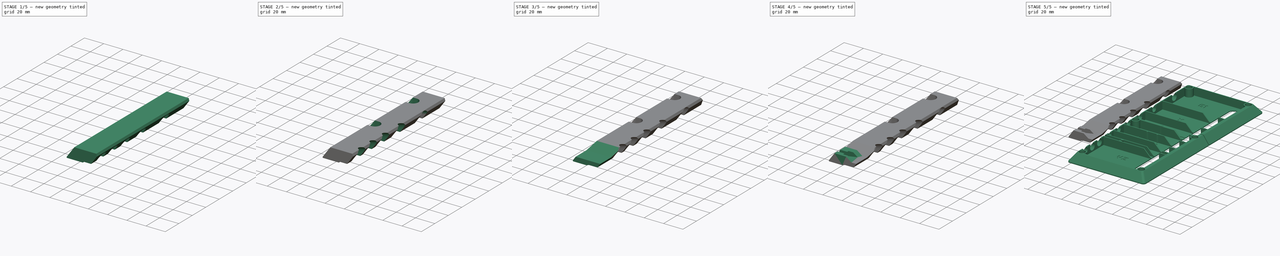
[diagram: build sequence overview — one tinted view per stage of 5, left to right]
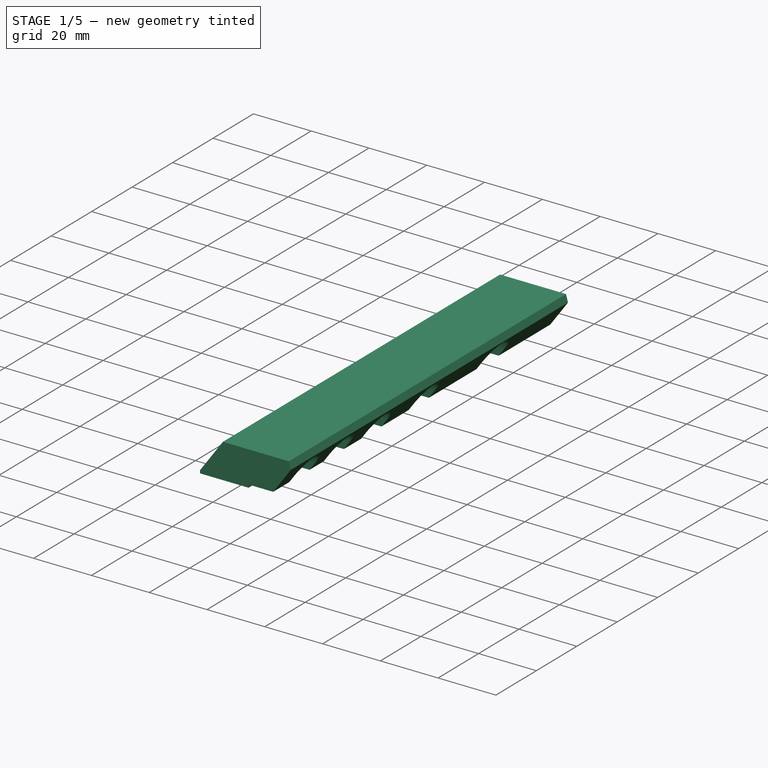
[diagram: stage 1 of 5 — iso view after this stage's code; geometry added in this stage tinted green]
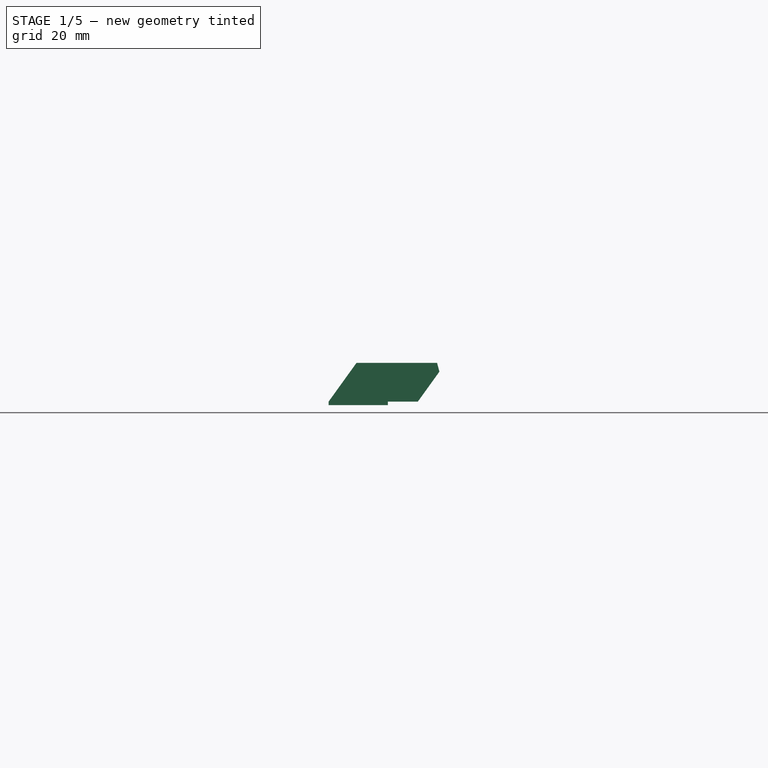
[diagram: stage 1 of 5 — front view after this stage's code; geometry added in this stage tinted green]
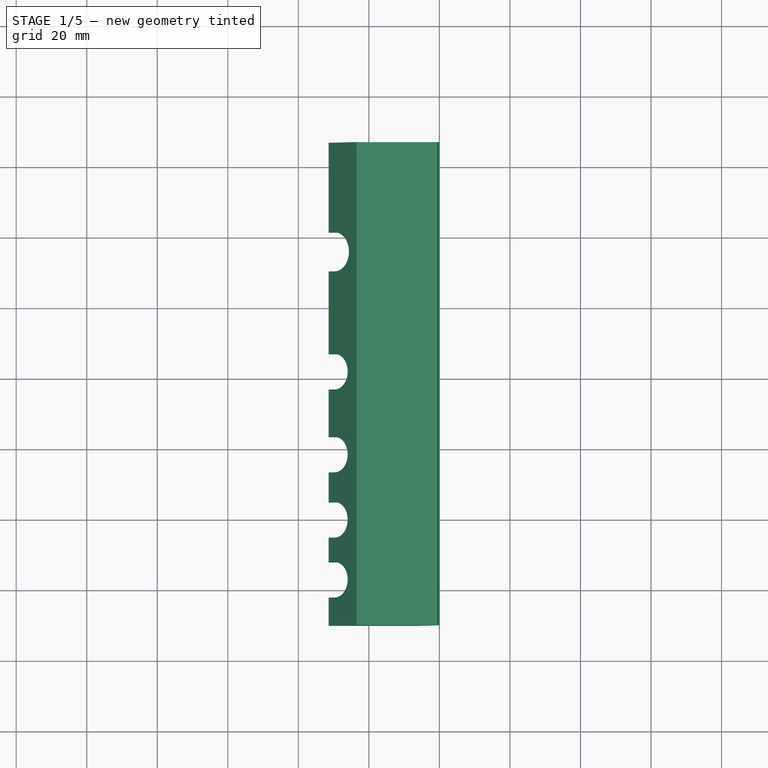
[diagram: stage 1 of 5 — top view after this stage's code; geometry added in this stage tinted green]
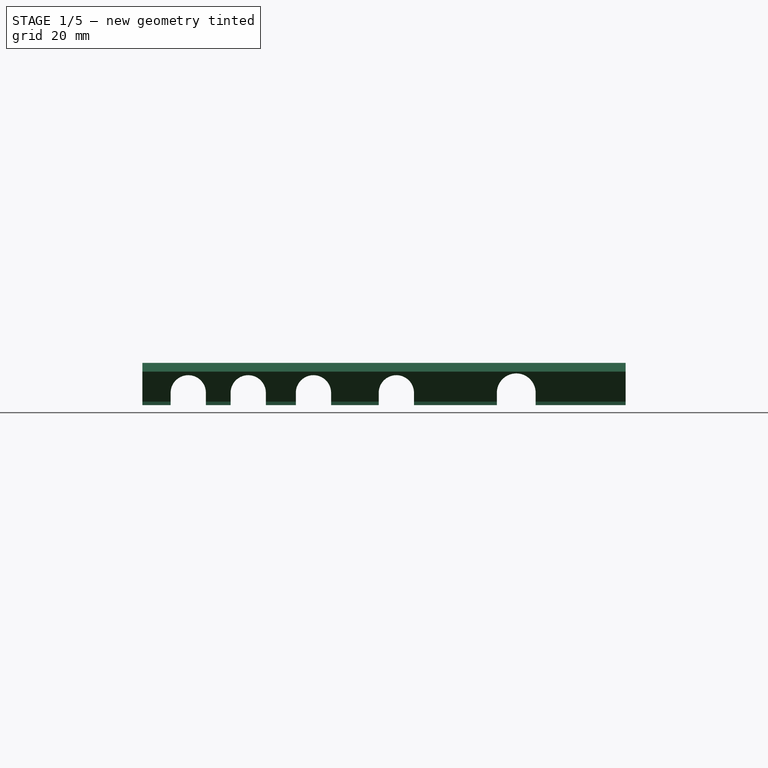
[diagram: stage 1 of 5 — right view after this stage's code; geometry added in this stage tinted green]
FCSTD DOCUMENT  (FreeCAD 0.17R13528 (Git))
Label: interconnect_strain_relief_v0.4
License: CreativeCommons Attribution-ShareAlike
LicenseURL: http://creativecommons.org/licenses/by-sa/4.0/
objects: Sketcher::SketchObject×12, PartDesign::Pocket×8, PartDesign::Pad×3, Part::FeaturePython×2, PartDesign::SubtractivePipe×1, PartDesign::Chamfer×1, PartDesign::Body×1
note: 40 computed .brp shape members not serialized (recipe doc carries the construction recipe); baked Part::Feature solids carry a one-line shape summary decoded from their .brp

FEATURE [Sketcher::SketchObject] Sketch
  MapMode = 5
  Placement = pos=(0,0,0) rot=(1,0,0;1.5708rad)
  Support = -> [XZ_Plane]
  sketch-geometry (8):
    g0: LineSegment StartX=-31.4191 StartY=0 StartZ=0 EndX=-31.4191 EndY=1 EndZ=0
    g1: LineSegment StartX=-31.4191 StartY=1 StartZ=0 EndX=-23.5003 EndY=12 EndZ=0
    g2: LineSegment StartX=-23.5003 StartY=12 StartZ=0 EndX=0 EndY=12 EndZ=0
    g3: LineSegment StartX=0 StartY=12 StartZ=0 EndX=0 EndY=9.5 EndZ=0
    g4: LineSegment StartX=0 StartY=9.5 StartZ=0 EndX=-6.11912 EndY=1 EndZ=0
    g5: LineSegment StartX=-14.6191 StartY=1 StartZ=0 EndX=-14.6191 EndY=0 EndZ=0
    g6: LineSegment StartX=-14.6191 StartY=0 StartZ=0 EndX=-31.4191 EndY=0 EndZ=0
    g7: LineSegment StartX=-14.6191 StartY=1 StartZ=0 EndX=-6.11912 EndY=1 EndZ=0
  constraints (24):
    c: Coincident(g0,g1)
    c: Coincident(g1,g2)
    c: Coincident(g2,g3)
    c: Coincident(g3,g4)
    c: Coincident(g5,g6)
    c: Coincident(g6,g0)
    c: Horizontal(g6)
    c: Horizontal(g2)
    c: Vertical(g3)
    c: Vertical(g0)
    c: Vertical(g5)
    c: Angle(g4) = -2.19475
    c: PointOnObject(g5,g-1)
    c: DistanceY(g5,g5) = 1
    c: PointOnObject(g3,g-2)
    c: DistanceY(g3,g3) = 2.5
    c: Parallel(g1,g4)
    c: DistanceY(g0,g0) = 1
    c: DistanceX(g6,g6) = 16.8
    c: DistanceY(g4) = 1
    c: DistanceY(g2) = 12
    c: Coincident(g4,g7)
    c: Coincident(g5,g7)
    c: DistanceX(g7,g7) = 8.5
FEATURE [PartDesign::Pad] Pad
  Length = 10
  Length2 = 127
  Placement = pos=(0,0,0) rot=(1,0,0;1.5708rad)
  Profile = -> Sketch
  Reversed = true
  Type = 4
FEATURE [Sketcher::SketchObject] Sketch001
  MapMode = 5
  Placement = pos=(-31.4191,0,0) rot=(0.707107,0,-0.707107;3.14159rad)
  Support = -> [Pad]
  sketch-geometry (28):
    g0: Circle [constr] CenterX=-3.5 CenterY=-38.5 CenterZ=0 NormalX=0 NormalY=0 NormalZ=1 AngleXU=0 Radius=5.5
    g1: Circle [constr] CenterX=-3.5 CenterY=-62 CenterZ=0 NormalX=0 NormalY=0 NormalZ=1 AngleXU=0 Radius=5.5
    g2: Circle [constr] CenterX=-3.5 CenterY=-96 CenterZ=0 NormalX=0 NormalY=0 NormalZ=1 AngleXU=0 Radius=5.5
    g3: Circle [constr] CenterX=-3.5 CenterY=-3 CenterZ=0 NormalX=0 NormalY=0 NormalZ=1 AngleXU=0 Radius=5.5
    g4: ArcOfCircle CenterX=-3.5 CenterY=-3 CenterZ=0 NormalX=0 NormalY=0 NormalZ=1 AngleXU=0 Radius=5 StartAngle=1.5708 EndAngle=4.71239
    g5: ArcOfCircle CenterX=-3.5 CenterY=-38.5 CenterZ=0 NormalX=0 NormalY=0 NormalZ=1 AngleXU=0 Radius=5 StartAngle=1.5708 EndAngle=4.71239
    g6: ArcOfCircle CenterX=-3.5 CenterY=-62 CenterZ=0 NormalX=0 NormalY=0 NormalZ=1 AngleXU=0 Radius=5 StartAngle=1.5708 EndAngle=4.71239
    g7: ArcOfCircle CenterX=-3.5 CenterY=-96 CenterZ=0 NormalX=0 NormalY=0 NormalZ=1 AngleXU=0 Radius=5.5 StartAngle=1.5708 EndAngle=4.71239
    g8: LineSegment StartX=-3.5 StartY=2 StartZ=0 EndX=4.5 EndY=2 EndZ=0
    g9: LineSegment StartX=4.5 StartY=2 StartZ=0 EndX=4.5 EndY=-8 EndZ=0
    g10: LineSegment StartX=4.5 StartY=-8 StartZ=0 EndX=-3.5 EndY=-8 EndZ=0
    g11: LineSegment [constr] StartX=-3.5 StartY=-8 StartZ=0 EndX=-3.5 EndY=2 EndZ=0
    g12: LineSegment StartX=-3.5 StartY=-33.5 StartZ=0 EndX=4.5 EndY=-33.5 EndZ=0
    g13: LineSegment StartX=4.5 StartY=-33.5 StartZ=0 EndX=4.5 EndY=-43.5 EndZ=0
    g14: LineSegment StartX=4.5 StartY=-43.5 StartZ=0 EndX=-3.5 EndY=-43.5 EndZ=0
    g15: LineSegment [constr] StartX=-3.5 StartY=-43.5 StartZ=0 EndX=-3.5 EndY=-33.5 EndZ=0
    g16: LineSegment StartX=-3.5 StartY=-57 StartZ=0 EndX=4.5 EndY=-57 EndZ=0
    g17: LineSegment StartX=4.5 StartY=-57 StartZ=0 EndX=4.5 EndY=-67 EndZ=0
    g18: LineSegment StartX=4.5 StartY=-67 StartZ=0 EndX=-3.5 EndY=-67 EndZ=0
    g19: LineSegment [constr] StartX=-3.5 StartY=-67 StartZ=0 EndX=-3.5 EndY=-57 EndZ=0
    g20: LineSegment StartX=-3.5 StartY=-90.5 StartZ=0 EndX=4.5 EndY=-90.5 EndZ=0
    g21: LineSegment StartX=4.5 StartY=-90.5 StartZ=0 EndX=4.5 EndY=-101.5 EndZ=0
    g22: LineSegment StartX=4.5 StartY=-101.5 StartZ=0 EndX=-3.5 EndY=-101.5 EndZ=0
    g23: LineSegment [constr] StartX=-3.5 StartY=-101.5 StartZ=0 EndX=-3.5 EndY=-90.5 EndZ=0
    g24: ArcOfCircle CenterX=-3.5 CenterY=-20 CenterZ=0 NormalX=0 NormalY=0 NormalZ=1 AngleXU=0 Radius=5 StartAngle=1.5708 EndAngle=4.71239
    g25: ArcOfCircle CenterX=3.5 CenterY=-20 CenterZ=0 NormalX=0 NormalY=0 NormalZ=1 AngleXU=0 Radius=5 StartAngle=4.71239 EndAngle=7.85398
    g26: LineSegment StartX=-3.5 StartY=-25 StartZ=0 EndX=3.5 EndY=-25 EndZ=0
    g27: LineSegment StartX=-3.5 StartY=-15 StartZ=0 EndX=3.5 EndY=-15 EndZ=0
  constraints (78):
    c: Equal(g0,g3)
    c: Radius(g3) = 5.5
    c: DistanceX(g3) = -3.5
    c: DistanceY(g3) = -3
    c: DistanceX(g0,g3) = 0
    c: DistanceY(g0,g3) = 35.5
    c: DistanceX(g0,g1) = 0
    c: DistanceY(g0,g1) = -23.5
    c: DistanceX(g2,g1) = 0
    c: DistanceY(g2,g1) = 34
    c: Coincident(g2,g7)
    c: Coincident(g1,g6)
    c: Coincident(g0,g5)
    c: Coincident(g3,g4)
    c: Coincident(g8,g9)
    c: Coincident(g9,g10)
    c: Coincident(g10,g11)
    c: Coincident(g11,g8)
    c: Horizontal(g8)
    c: Horizontal(g10)
    c: Vertical(g9)
    c: Vertical(g11)
    c: Coincident(g12,g13)
    c: Coincident(g13,g14)
    c: Coincident(g14,g15)
    c: Coincident(g15,g12)
    c: Horizontal(g12)
    c: Horizontal(g14)
    c: Vertical(g13)
    c: Vertical(g15)
    c: Coincident(g16,g17)
    c: Coincident(g17,g18)
    c: Coincident(g18,g19)
    c: Coincident(g19,g16)
    c: Horizontal(g16)
    c: Horizontal(g18)
    c: Vertical(g17)
    c: Vertical(g19)
    c: Coincident(g20,g21)
    c: Coincident(g21,g22)
    c: Coincident(g22,g23)
    c: Coincident(g23,g20)
    c: Horizontal(g20)
    c: Horizontal(g22)
    c: Vertical(g21)
    c: Vertical(g23)
    c: Coincident(g7,g22)
    c: Coincident(g7,g20)
    c: PointOnObject(g2,g23)
    c: DistanceX(g20,g20) = 8
    c: Equal(g20,g18)
    c: Coincident(g6,g18)
    c: Coincident(g6,g16)
    c: PointOnObject(g1,g19)
    c: Equal(g16,g14)
    c: Coincident(g5,g14)
    c: Coincident(g5,g12)
    c: PointOnObject(g0,g15)
    c: Coincident(g4,g10)
    c: Coincident(g4,g8)
    c: PointOnObject(g3,g11)
    c: Equal(g8,g12)
    c: Equal(g13,g9)
    c: DistanceY(g21,g21) = 11
    c: DistanceY(g17,g17) = 10
    c: Equal(g13,g17)
    c: Equal(g1,g0)
    c: Equal(g0,g2)
    c: Tangent(g24,g27) = 1.5708
    c: Tangent(g24,g26) = -1.5708
    c: Tangent(g26,g25) = -1.5708
    c: Tangent(g27,g25) = 1.5708
    c: Horizontal(g26)
    c: Equal(g24,g25)
    c: Equal(g24,g4)
    c: DistanceX(g24,g4) = 0
    c: DistanceY(g24,g4) = 17
    c: DistanceX(g27,g27) = 7
FEATURE [Sketcher::SketchObject] Sketch003
  MapMode = 5
  Placement = pos=(2.37704,0,0.636926) rot=(0.608761,0,0.793353;3.14159rad)
  sketch-geometry (25):
    g0: ArcOfCircle CenterX=6 CenterY=-38.5 CenterZ=0 NormalX=0 NormalY=0 NormalZ=1 AngleXU=0 Radius=6.5 StartAngle=4.71239 EndAngle=7.85398
    g1: ArcOfCircle CenterX=6 CenterY=-62 CenterZ=0 NormalX=0 NormalY=0 NormalZ=1 AngleXU=0 Radius=6.5 StartAngle=4.71239 EndAngle=7.85398
    g2: ArcOfCircle CenterX=6 CenterY=-96 CenterZ=0 NormalX=0 NormalY=0 NormalZ=1 AngleXU=0 Radius=5.5 StartAngle=4.71239 EndAngle=7.85398
    g3: ArcOfCircle CenterX=6 CenterY=-3 CenterZ=0 NormalX=0 NormalY=0 NormalZ=1 AngleXU=0 Radius=6.5 StartAngle=4.71239 EndAngle=7.85398
    g4: LineSegment StartX=6 StartY=3.5 StartZ=0 EndX=0 EndY=3.5 EndZ=0
    g5: LineSegment StartX=0 StartY=3.5 StartZ=0 EndX=0 EndY=-9.5 EndZ=0
    g6: LineSegment StartX=0 StartY=-9.5 StartZ=0 EndX=6 EndY=-9.5 EndZ=0
    g7: LineSegment [constr] StartX=6 StartY=-9.5 StartZ=0 EndX=6 EndY=3.5 EndZ=0
    g8: LineSegment StartX=6 StartY=-32 StartZ=0 EndX=0 EndY=-32 EndZ=0
    g9: LineSegment StartX=0 StartY=-32 StartZ=0 EndX=0 EndY=-45 EndZ=0
    g10: LineSegment StartX=0 StartY=-45 StartZ=0 EndX=6 EndY=-45 EndZ=0
    g11: LineSegment [constr] StartX=6 StartY=-45 StartZ=0 EndX=6 EndY=-32 EndZ=0
    g12: LineSegment StartX=6 StartY=-55.5 StartZ=0 EndX=0 EndY=-55.5 EndZ=0
    g13: LineSegment StartX=0 StartY=-55.5 StartZ=0 EndX=0 EndY=-68.5 EndZ=0
    g14: LineSegment StartX=0 StartY=-68.5 StartZ=0 EndX=6 EndY=-68.5 EndZ=0
    g15: LineSegment [constr] StartX=6 StartY=-68.5 StartZ=0 EndX=6 EndY=-55.5 EndZ=0
    g16: LineSegment StartX=6 StartY=-90.5 StartZ=0 EndX=0 EndY=-90.5 EndZ=0
    g17: LineSegment StartX=0 StartY=-90.5 StartZ=0 EndX=0 EndY=-101.5 EndZ=0
    g18: LineSegment StartX=0 StartY=-101.5 StartZ=0 EndX=6 EndY=-101.5 EndZ=0
    g19: LineSegment [constr] StartX=6 StartY=-101.5 StartZ=0 EndX=6 EndY=-90.5 EndZ=0
    g20: LineSegment [constr] StartX=6 StartY=-3 StartZ=0 EndX=6 EndY=-96 EndZ=0
    g21: ArcOfCircle CenterX=6 CenterY=-20 CenterZ=0 NormalX=0 NormalY=0 NormalZ=1 AngleXU=0 Radius=6.5 StartAngle=4.71239 EndAngle=7.85398
    g22: ArcOfCircle CenterX=-1e-12 CenterY=-20 CenterZ=0 NormalX=0 NormalY=0 NormalZ=1 AngleXU=0 Radius=6.5 StartAngle=1.5708 EndAngle=4.71239
    g23: LineSegment StartX=6 StartY=-13.5 StartZ=0 EndX=-1e-12 EndY=-13.5 EndZ=0
    g24: LineSegment StartX=6 StartY=-26.5 StartZ=0 EndX=-1e-12 EndY=-26.5 EndZ=0
  constraints (71):
    c: Equal(g1,g0)
    c: Equal(g0,g3)
    c: Radius(g3) = 6.5
    c: Coincident(g5,g6)
    c: Coincident(g6,g7)
    c: Coincident(g7,g4)
    c: Horizontal(g4)
    c: Horizontal(g6)
    c: Vertical(g5)
    c: Vertical(g7)
    c: Coincident(g8,g9)
    c: Coincident(g9,g10)
    c: Coincident(g10,g11)
    c: Coincident(g11,g8)
    c: Horizontal(g8)
    c: Horizontal(g10)
    c: Vertical(g9)
    c: Vertical(g11)
    c: Coincident(g12,g13)
    c: Coincident(g13,g14)
    c: Coincident(g14,g15)
    c: Coincident(g15,g12)
    c: Horizontal(g12)
    c: Horizontal(g14)
    c: Vertical(g13)
    c: Vertical(g15)
    c: Coincident(g16,g17)
    c: Coincident(g17,g18)
    c: Coincident(g18,g19)
    c: Coincident(g19,g16)
    c: Horizontal(g16)
    c: Horizontal(g18)
    c: Vertical(g17)
    c: Vertical(g19)
    c: Coincident(g2,g18)
    c: Coincident(g2,g16)
    c: DistanceX(g-1,g3) = 6
    c: Coincident(g3,g4)
    c: Tangent(g3,g6) = -1.5708
    c: Coincident(g4,g5)
    c: PointOnObject(g5,g-2)
    c: DistanceY(g3,g-1) = 3
    c: Coincident(g2,g20)
    c: Coincident(g1,g12)
    c: Coincident(g1,g14)
    c: Coincident(g0,g10)
    c: Coincident(g0,g8)
    c: PointOnObject(g0,g20)
    c: PointOnObject(g8,g-2)
    c: PointOnObject(g12,g-2)
    c: PointOnObject(g1,g15)
    c: PointOnObject(g1,g20)
    c: PointOnObject(g0,g11)
    c: PointOnObject(g2,g19)
    c: PointOnObject(g16,g-2)
    c: Vertical(g20)
    c: Coincident(g3,g20)
    c: DistanceY(g0,g3) = 35.5
    c: DistanceY(g1,g0) = 23.5
    c: DistanceY(g2,g1) = 34
    c: Radius(g2) = 5.5
    c: Tangent(g21,g24) = 1.5708
    c: Tangent(g21,g23) = -1.5708
    c: Tangent(g23,g22) = -1.5708
    c: Tangent(g24,g22) = 1.5708
    c: Horizontal(g23)
    c: Equal(g21,g22)
    c: Equal(g23,g6)
    c: Equal(g21,g3)
    c: PointOnObject(g21,g20)
    c: DistanceY(g21,g3) = 17
FEATURE [Sketcher::SketchObject] Sketch004
  MapMode = 5
  Placement = pos=(0,0,12.0082) rot=(0,0,1;3.14159rad)
  sketch-geometry (10):
    g0: Circle [constr] CenterX=19.62 CenterY=-107 CenterZ=0 NormalX=0 NormalY=0 NormalZ=1 AngleXU=0 Radius=3
    g1: Circle [constr] CenterX=19.62 CenterY=-50.5 CenterZ=0 NormalX=0 NormalY=0 NormalZ=1 AngleXU=0 Radius=3
    g2: ArcOfCircle CenterX=19.62 CenterY=-50.5 CenterZ=0 NormalX=0 NormalY=0 NormalZ=1 AngleXU=0 Radius=3 StartAngle=1.5708 EndAngle=4.71239
    g3: ArcOfCircle CenterX=23.62 CenterY=-50.5 CenterZ=0 NormalX=0 NormalY=0 NormalZ=1 AngleXU=0 Radius=3 StartAngle=4.71239 EndAngle=7.85398
    g4: LineSegment StartX=19.62 StartY=-53.5 StartZ=0 EndX=23.62 EndY=-53.5 EndZ=0
    g5: LineSegment StartX=19.62 StartY=-47.5 StartZ=0 EndX=23.62 EndY=-47.5 EndZ=0
    g6: ArcOfCircle CenterX=19.62 CenterY=-107 CenterZ=0 NormalX=0 NormalY=0 NormalZ=1 AngleXU=0 Radius=3 StartAngle=1.5708 EndAngle=4.71239
    g7: ArcOfCircle CenterX=23.62 CenterY=-107 CenterZ=0 NormalX=0 NormalY=0 NormalZ=1 AngleXU=0 Radius=3 StartAngle=4.71239 EndAngle=7.85398
    g8: LineSegment StartX=19.62 StartY=-110 StartZ=0 EndX=23.62 EndY=-110 EndZ=0
    g9: LineSegment StartX=19.62 StartY=-104 StartZ=0 EndX=23.62 EndY=-104 EndZ=0
  constraints (24):
    c: DistanceY(g0) = -107
    c: Radius(g0) = 3
    c: DistanceX(g1,g0) = 0
    c: DistanceY(g1,g0) = -56.5
    c: Equal(g1,g0)
    c: DistanceX(g0) = 19.62
    c: Tangent(g2,g5) = 1.5708
    c: Tangent(g2,g4) = -1.5708
    c: Tangent(g4,g3) = -1.5708
    c: Tangent(g5,g3) = 1.5708
    c: Horizontal(g4)
    c: Equal(g2,g3)
    c: Tangent(g6,g9) = 1.5708
    c: Tangent(g6,g8) = -1.5708
    c: Tangent(g8,g7) = -1.5708
    c: Tangent(g9,g7) = 1.5708
    c: Horizontal(g8)
    c: Equal(g6,g7)
    c: Coincident(g0,g6)
    c: Equal(g6,g0)
    c: DistanceX(g9,g9) = 4
    c: Coincident(g1,g2)
    c: Equal(g2,g1)
    c: DistanceX(g5,g5) = 4
FEATURE [Sketcher::SketchObject] Sketch005
  MapMode = 5
  Placement = pos=(0,0,12.0082) rot=(0,0,1;3.14159rad)
  sketch-geometry (10):
    g0: Circle [constr] CenterX=19.5 CenterY=-50.5 CenterZ=0 NormalX=0 NormalY=0 NormalZ=1 AngleXU=0 Radius=5.5
    g1: Circle [constr] CenterX=19.5 CenterY=-107 CenterZ=0 NormalX=0 NormalY=0 NormalZ=1 AngleXU=0 Radius=5.5
    g2: ArcOfCircle CenterX=19.5 CenterY=-107 CenterZ=0 NormalX=0 NormalY=0 NormalZ=1 AngleXU=0 Radius=5.5 StartAngle=1.5708 EndAngle=4.71239
    g3: ArcOfCircle CenterX=23.5 CenterY=-107 CenterZ=0 NormalX=0 NormalY=0 NormalZ=1 AngleXU=0 Radius=5.5 StartAngle=4.71239 EndAngle=7.85398
    g4: LineSegment StartX=19.5 StartY=-112.5 StartZ=0 EndX=23.5 EndY=-112.5 EndZ=0
    g5: LineSegment StartX=19.5 StartY=-101.5 StartZ=0 EndX=23.5 EndY=-101.5 EndZ=0
    g6: ArcOfCircle CenterX=19.5 CenterY=-50.5 CenterZ=0 NormalX=0 NormalY=0 NormalZ=1 AngleXU=0 Radius=5.5 StartAngle=1.5708 EndAngle=4.71239
    g7: ArcOfCircle CenterX=23.5 CenterY=-50.5 CenterZ=0 NormalX=0 NormalY=0 NormalZ=1 AngleXU=0 Radius=5.5 StartAngle=4.71239 EndAngle=7.85398
    g8: LineSegment StartX=19.5 StartY=-56 StartZ=0 EndX=23.5 EndY=-56 EndZ=0
    g9: LineSegment StartX=19.5 StartY=-45 StartZ=0 EndX=23.5 EndY=-45 EndZ=0
  constraints (24):
    c: Radius(g0) = 5.5
    c: DistanceX(g0,g1) = 0
    c: Equal(g1,g0)
    c: DistanceX(g0) = 19.5
    c: Tangent(g2,g5) = 1.5708
    c: Tangent(g2,g4) = -1.5708
    c: Tangent(g4,g3) = -1.5708
    c: Tangent(g5,g3) = 1.5708
    c: Horizontal(g4)
    c: Equal(g2,g3)
    c: Equal(g2,g1)
    c: Coincident(g1,g2)
    c: DistanceX(g5,g5) = 4
    c: Tangent(g6,g9) = 1.5708
    c: Tangent(g6,g8) = -1.5708
    c: Tangent(g8,g7) = -1.5708
    c: Tangent(g9,g7) = 1.5708
    c: Horizontal(g8)
    c: Equal(g6,g7)
    c: Coincident(g0,g6)
    c: Equal(g7,g0)
    c: DistanceX(g9,g9) = 4
    c: DistanceY(g3) = -107
    c: DistanceY(g2,g6) = 56.5
FEATURE [PartDesign::Pocket] Pocket
  BaseFeature = -> Pad
  Length = 5
  Length2 = 100
  Placement = pos=(0,0,0) rot=(1,0,0;1.5708rad)
  Profile = -> Sketch001
  Type = 1
FEATURE [Sketcher::SketchObject] Sketch002
  MapMode = 5
  Placement = pos=(0,-10,-1e-12) rot=(1,0,0;1.5708rad)
  Support = -> [Pocket]
  sketch-geometry (3):
    g0: LineSegment StartX=0 StartY=9.50816 StartZ=0 EndX=-0.669873 EndY=12.0082 EndZ=0
    g1: LineSegment StartX=-0.669873 StartY=12.0082 StartZ=0 EndX=0 EndY=12.0082 EndZ=0
    g2: LineSegment StartX=0 StartY=12.0082 StartZ=0 EndX=0 EndY=9.50816 EndZ=0
  constraints (9):
    c: Coincident(g0,g1)
    c: Coincident(g1,g2)
    c: Coincident(g0,g2)
    c: Horizontal(g1)
    c: Vertical(g2)
    c: PointOnObject(g0,g-2)
    c: DistanceY(g2,g2) = 2.5
    c: Angle(g0,g1) = 1.309
    c: DistanceY(g1) = 12.0082
FEATURE [PartDesign::Pocket] Pocket001
  BaseFeature = -> Pocket
  Length = 5
  Length2 = 100
  Placement = pos=(0,0,0) rot=(1,0,0;1.5708rad)
  Profile = -> Sketch002
  Type = 1
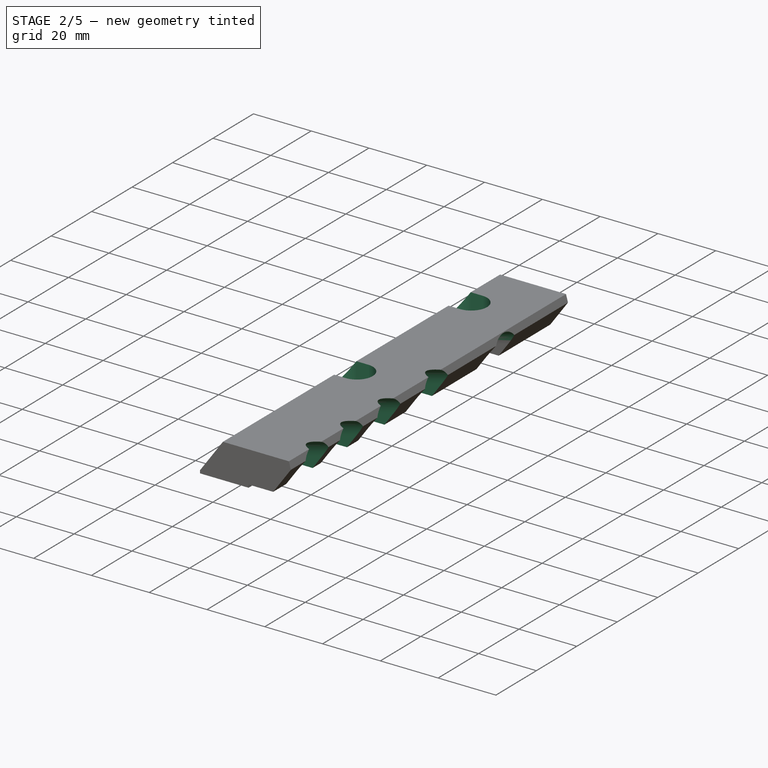
[diagram: stage 2 of 5 — iso view after this stage's code; geometry added in this stage tinted green]
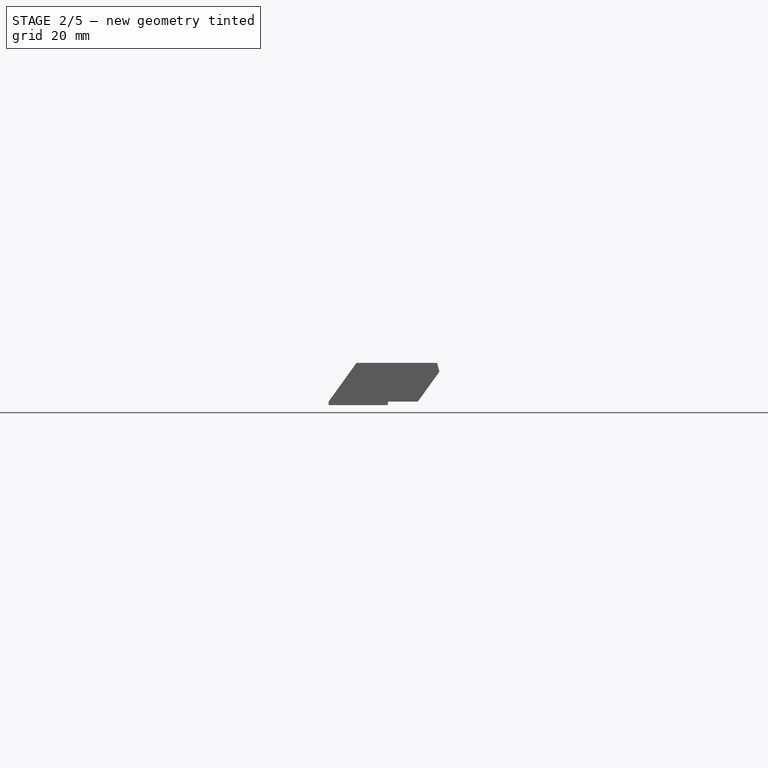
[diagram: stage 2 of 5 — front view after this stage's code; geometry added in this stage tinted green]
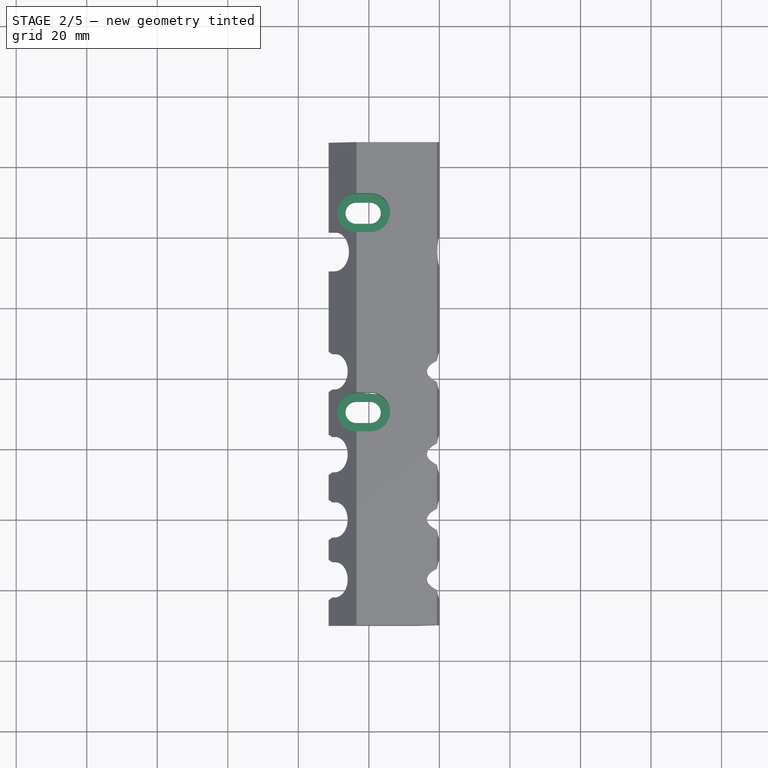
[diagram: stage 2 of 5 — top view after this stage's code; geometry added in this stage tinted green]
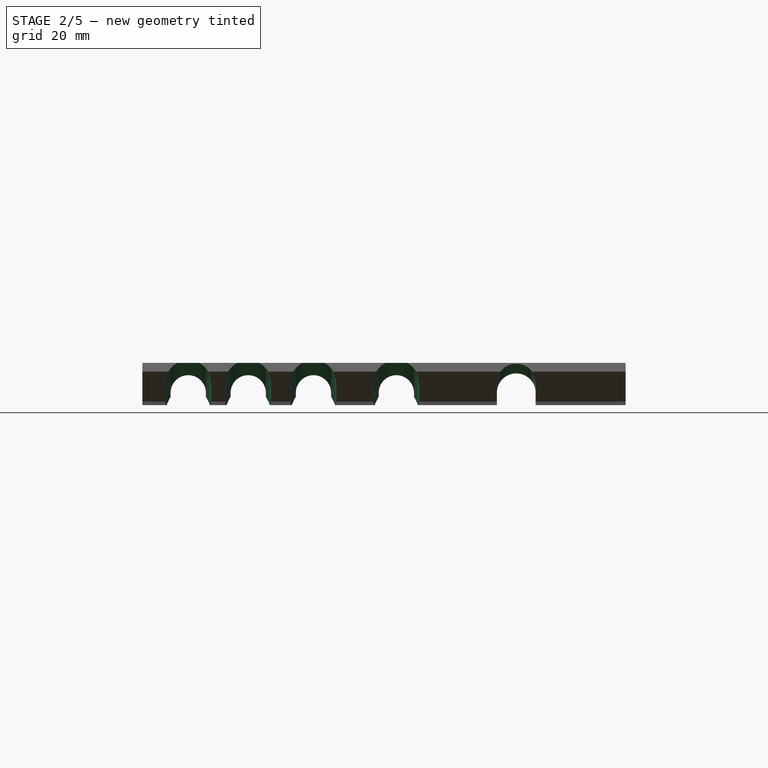
[diagram: stage 2 of 5 — right view after this stage's code; geometry added in this stage tinted green]
FEATURE [PartDesign::Pocket] Pocket002
  BaseFeature = -> Pocket001
  Length = 5
  Length2 = 100
  Placement = pos=(0,0,0) rot=(1,0,0;1.5708rad)
  Profile = -> Sketch003
  Type = 1
FEATURE [PartDesign::Pocket] Pocket003
  BaseFeature = -> Pocket002
  Length = 5
  Length2 = 100
  Placement = pos=(0,0,0) rot=(1,0,0;1.5708rad)
  Profile = -> Sketch004
  Type = 1
FEATURE [PartDesign::Pocket] Pocket004
  BaseFeature = -> Pocket003
  Length = 9
  Length2 = 100
  Placement = pos=(0,0,0) rot=(1,0,0;1.5708rad)
  Profile = -> Sketch005
  Type = 0
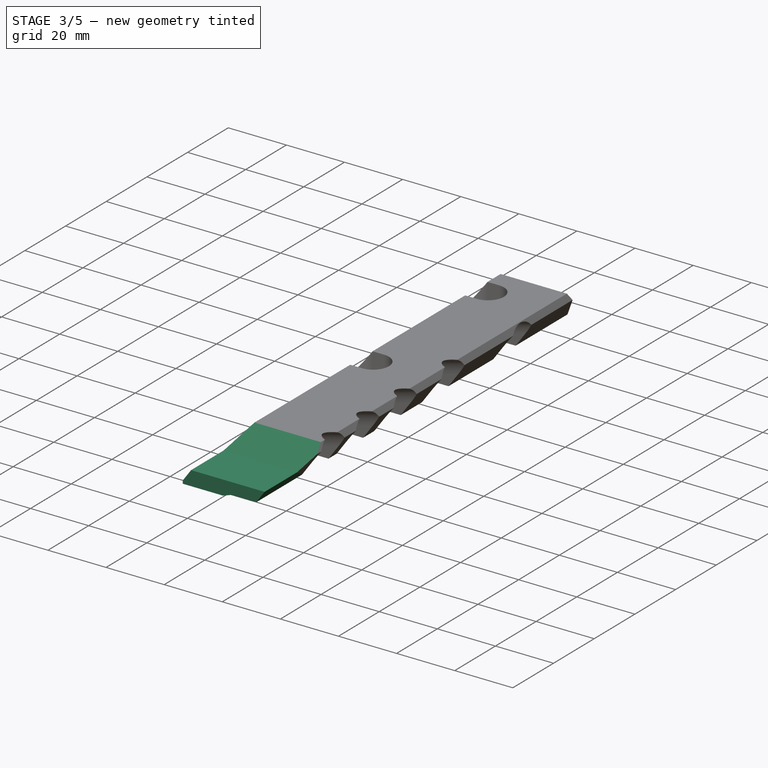
[diagram: stage 3 of 5 — iso view after this stage's code; geometry added in this stage tinted green]
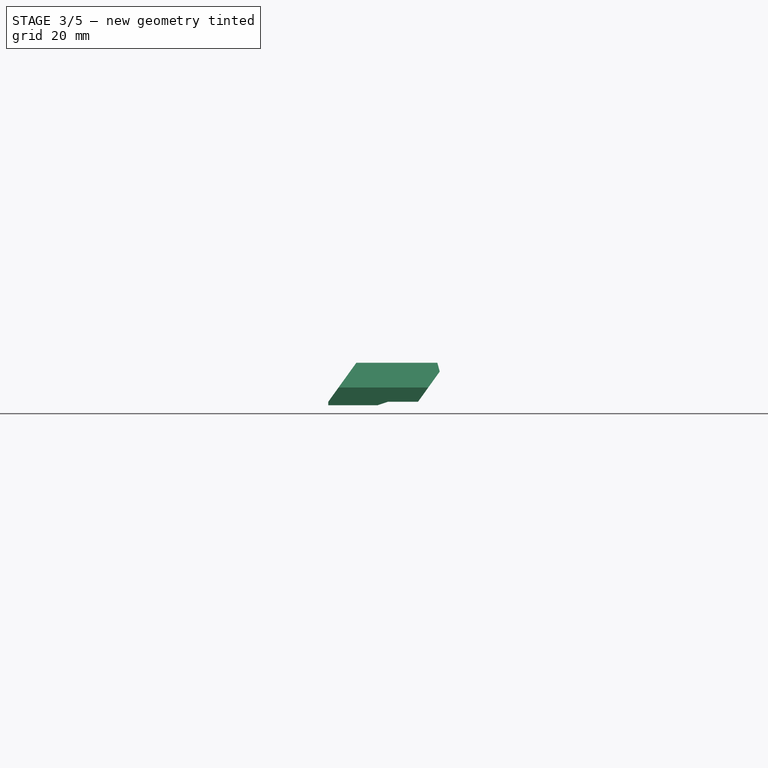
[diagram: stage 3 of 5 — front view after this stage's code; geometry added in this stage tinted green]
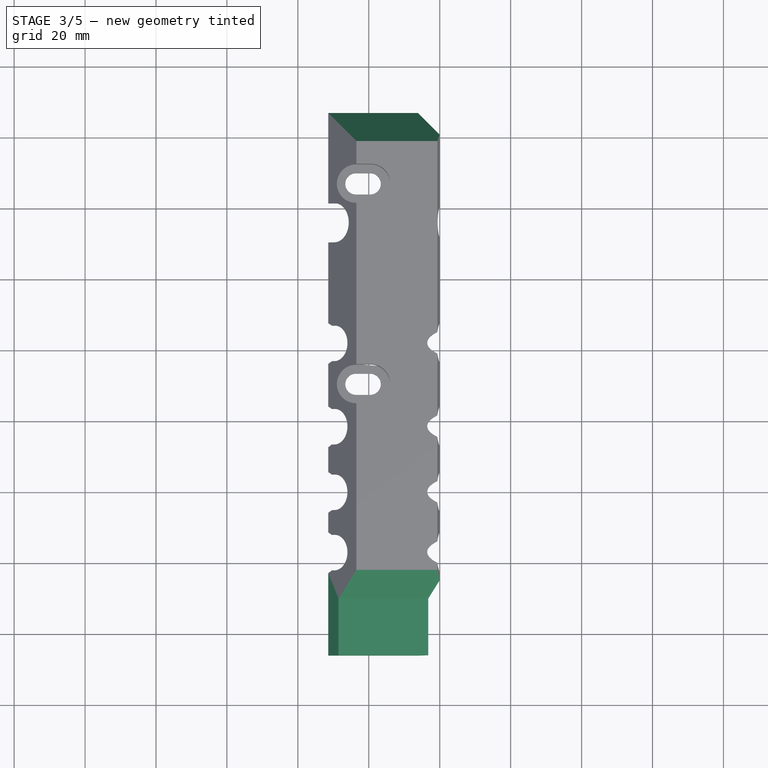
[diagram: stage 3 of 5 — top view after this stage's code; geometry added in this stage tinted green]
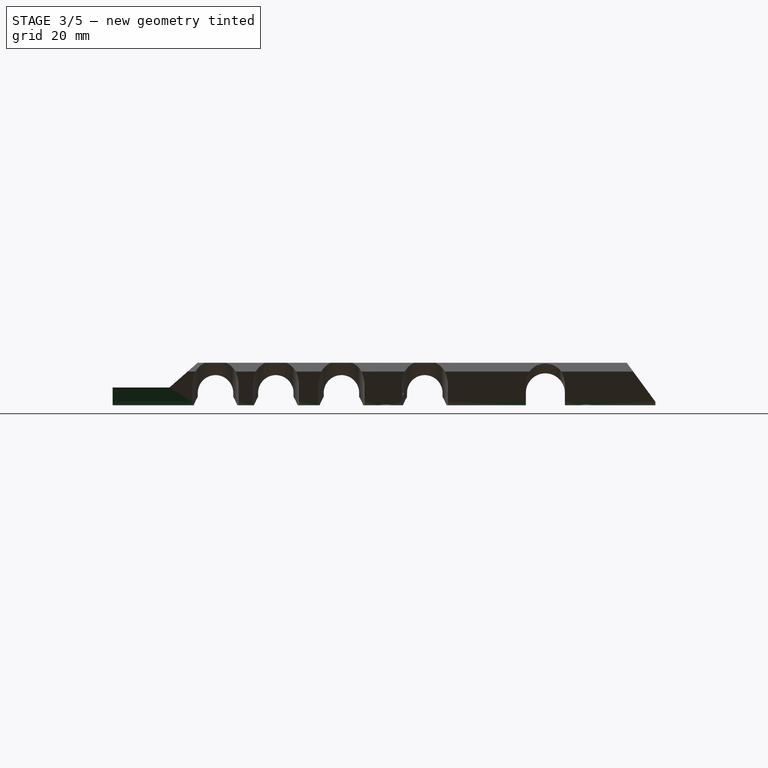
[diagram: stage 3 of 5 — right view after this stage's code; geometry added in this stage tinted green]
FEATURE [PartDesign::Pocket] Pocket005
  BaseFeature = -> Pocket004
  Length = 5
  Length2 = 100
  Placement = pos=(0,0,0) rot=(1,0,0;1.5708rad)
  Profile = -> Sketch007
  Refine = true
  Type = 1
FEATURE [PartDesign::Pocket] Pocket006
  BaseFeature = -> Pocket005
  Length = 5
  Length2 = 100
  Placement = pos=(0,0,0) rot=(1,0,0;1.5708rad)
  Profile = -> Sketch006
  Refine = true
  Type = 1
FEATURE [PartDesign::Pad] Pad001
  BaseFeature = -> Pocket006
  Length = 16
  Length2 = 100
  Placement = pos=(0,0,0) rot=(1,0,0;1.5708rad)
  Profile = -> Pocket006 [Face30]
  Refine = true
  Type = 0
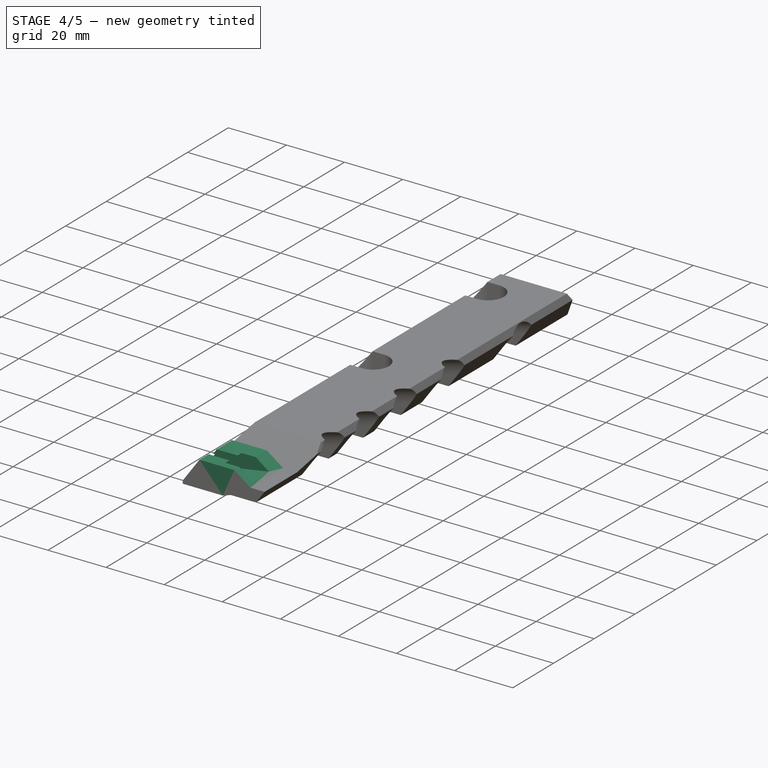
[diagram: stage 4 of 5 — iso view after this stage's code; geometry added in this stage tinted green]
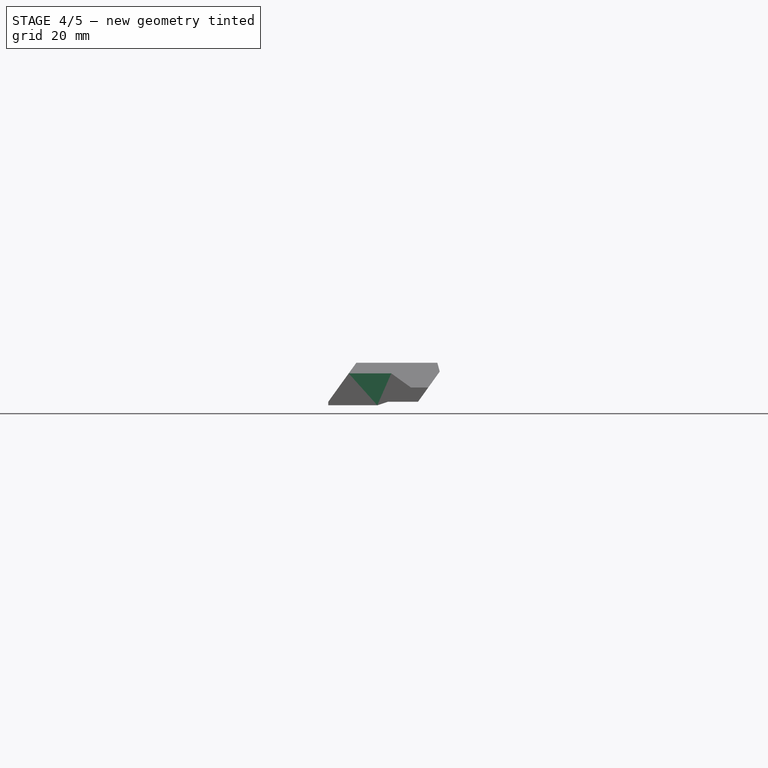
[diagram: stage 4 of 5 — front view after this stage's code; geometry added in this stage tinted green]
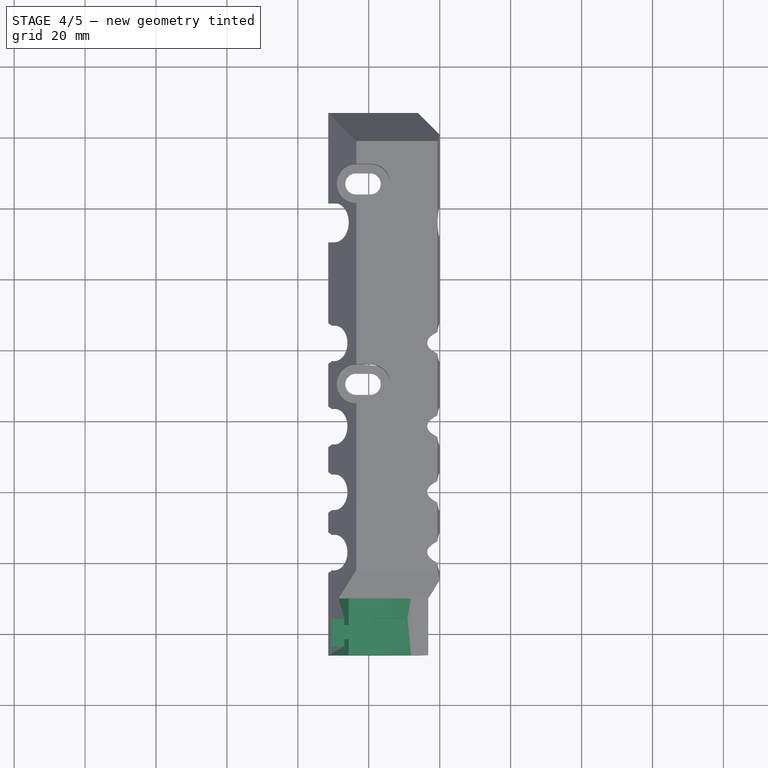
[diagram: stage 4 of 5 — top view after this stage's code; geometry added in this stage tinted green]
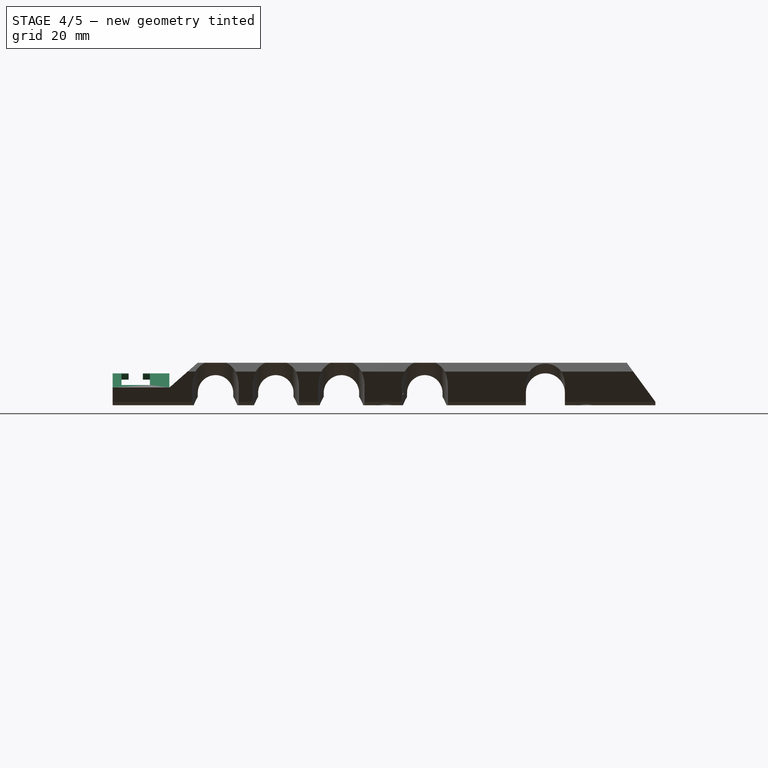
[diagram: stage 4 of 5 — right view after this stage's code; geometry added in this stage tinted green]
FEATURE [Sketcher::SketchObject] Sketch018
  ExternalGeometry = -> [Pad001]
  MapMode = 5
  Placement = pos=(0,-26,-3e-12) rot=(1,0,0;1.5708rad)
  Support = -> [Pad001]
  sketch-geometry (4):
    g0: LineSegment StartX=-28.5395 StartY=5 StartZ=0 EndX=-25.6599 EndY=9 EndZ=0
    g1: LineSegment StartX=-25.6599 StartY=9 StartZ=0 EndX=-13.6599 EndY=9 EndZ=0
    g2: LineSegment StartX=-13.6599 StartY=9 StartZ=0 EndX=-8.1036 EndY=5 EndZ=0
    g3: LineSegment StartX=-8.1036 StartY=5 StartZ=0 EndX=-28.5395 EndY=5 EndZ=0
  constraints (11):
    c: Coincident(g-4,g0)
    c: Coincident(g0,g1)
    c: Horizontal(g1)
    c: Coincident(g1,g2)
    c: PointOnObject(g2,g-3)
    c: Coincident(g2,g3)
    c: Coincident(g3,g0)
    c: Parallel(g0,g-4)
    c: DistanceY(g0,g0) = 4
    c: DistanceX(g1,g1) = 12
    c: Perpendicular(g0,g2)
FEATURE [PartDesign::Pad] Pad002
  BaseFeature = -> Pad001
  Length = 16
  Length2 = 100
  Placement = pos=(0,0,0) rot=(1,0,0;1.5708rad)
  Profile = -> Sketch018
  Refine = true
  Reversed = true
  Type = 0
FEATURE [Sketcher::SketchObject] Sketch019
  MapMode = 5
  Placement = pos=(-31.4191,0,0) rot=(-0.707107,0,0.707107;3.14159rad)
  Support = -> [Pad002]
  sketch-geometry (4):
    g0: LineSegment StartX=-2 StartY=15.5 StartZ=0 EndX=-6.5 EndY=15.5 EndZ=0
    g1: LineSegment StartX=-6.5 StartY=15.5 StartZ=0 EndX=-6.5 EndY=23.5 EndZ=0
    g2: LineSegment StartX=-6.5 StartY=23.5 StartZ=0 EndX=-2 EndY=23.5 EndZ=0
    g3: LineSegment StartX=-2 StartY=23.5 StartZ=0 EndX=-2 EndY=15.5 EndZ=0
  constraints (12):
    c: Coincident(g0,g1)
    c: Coincident(g1,g2)
    c: Coincident(g2,g3)
    c: Coincident(g3,g0)
    c: Horizontal(g0)
    c: Horizontal(g2)
    c: Vertical(g1)
    c: Vertical(g3)
    c: DistanceY(g1,g1) = 8
    c: DistanceX(g0,g0) = 4.5
    c: DistanceX(g0) = -2
    c: DistanceY(g0) = 15.5
FEATURE [Sketcher::SketchObject] Sketch020
  MapMode = 5
  Placement = pos=(0,-26,-3e-12) rot=(1,0,0;1.5708rad)
  Support = -> [Pad002]
  sketch-geometry (1):
    g0: LineSegment StartX=-31.5 StartY=1.75 StartZ=0 EndX=0 EndY=7 EndZ=0
  constraints (4):
    c: PointOnObject(g0,g-2)
    c: DistanceY(g0) = 7
    c: DistanceY(g0) = 1.75
    c: DistanceX(g0,g0) = 31.5
FEATURE [PartDesign::SubtractivePipe] SubtractivePipe
  AuxilleryCurvelinear = true
  AuxillerySpineTangent = false
  BaseFeature = -> Pad002
  Binormal = (0,0,0)
  Mode = 0
  Placement = pos=(0,0,0) rot=(1,0,0;1.5708rad)
  Profile = -> Sketch019
  Refine = true
  Spine = -> Sketch020 [Edge1]
  SpineTangent = false
  Transformation = 0
  Transition = 0
FEATURE [Sketcher::SketchObject] Sketch015
  ExternalGeometry = -> [SubtractivePipe]
  MapMode = 5
  Placement = pos=(0,-1e-12,9.03276) rot=(0,0,1;3.14159rad)
  sketch-geometry (8):
    g0: LineSegment StartX=16.4191 StartY=23.5 StartZ=0 EndX=18.4191 EndY=23.5 EndZ=0
    g1: LineSegment StartX=18.4191 StartY=23.5 StartZ=0 EndX=18.4191 EndY=21.5 EndZ=0
    g2: LineSegment StartX=18.4191 StartY=21.5 StartZ=0 EndX=26.9199 EndY=21.5 EndZ=0
    g3: LineSegment StartX=26.9199 StartY=21.5 StartZ=0 EndX=26.9199 EndY=17.5 EndZ=0
    g4: LineSegment StartX=26.9199 StartY=17.5 StartZ=0 EndX=18.4191 EndY=17.5 EndZ=0
    g5: LineSegment StartX=18.4191 StartY=17.5 StartZ=0 EndX=18.4191 EndY=15.5 EndZ=0
    g6: LineSegment StartX=18.4191 StartY=15.5 StartZ=0 EndX=16.4191 EndY=15.5 EndZ=0
    g7: LineSegment StartX=16.4191 StartY=15.5 StartZ=0 EndX=16.4191 EndY=23.5 EndZ=0
  constraints (22):
    c: Coincident(g-3,g0)
    c: Horizontal(g0)
    c: Coincident(g0,g1)
    c: Vertical(g1)
    c: Coincident(g1,g2)
    c: PointOnObject(g2,g-4)
    c: Horizontal(g2)
    c: Coincident(g2,g3)
    c: PointOnObject(g3,g-4)
    c: Coincident(g3,g4)
    c: Horizontal(g4)
    c: Coincident(g4,g5)
    c: Vertical(g5)
    c: Coincident(g5,g6)
    c: Coincident(g6,g-3)
    c: Coincident(g6,g7)
    c: Coincident(g7,g0)
    c: Horizontal(g6)
    c: Equal(g0,g6)
    c: Equal(g5,g1)
    c: DistanceY(g3,g3) = 4
    c: DistanceX(g0,g0) = 2
FEATURE [PartDesign::Pocket] Pocket007
  BaseFeature = -> SubtractivePipe
  Length = 4
  Length2 = 100
  Placement = pos=(0,0,0) rot=(1,0,0;1.5708rad)
  Profile = -> Sketch015
  Refine = true
  Type = 0
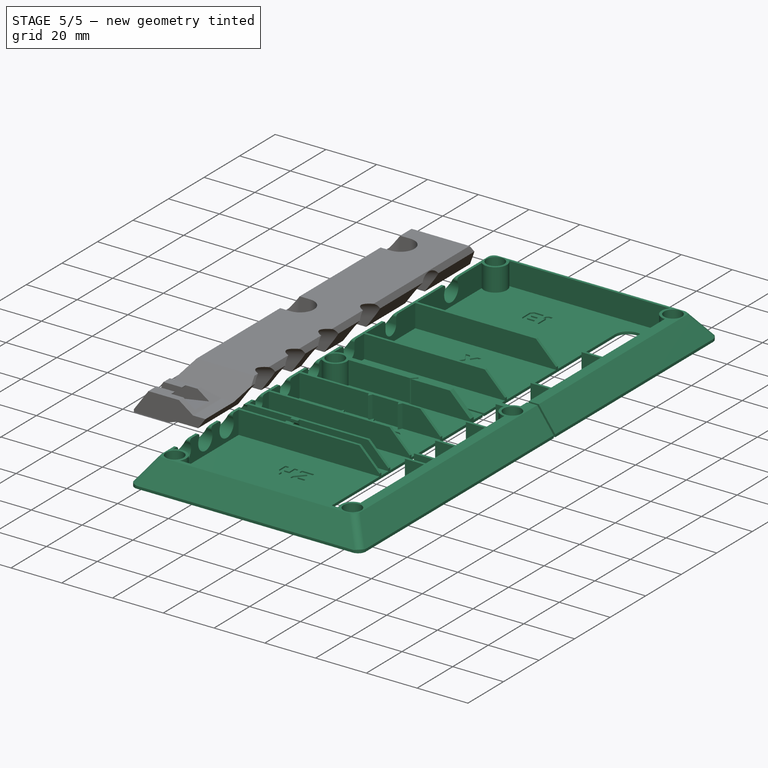
[diagram: stage 5 of 5 — iso view after this stage's code; geometry added in this stage tinted green]
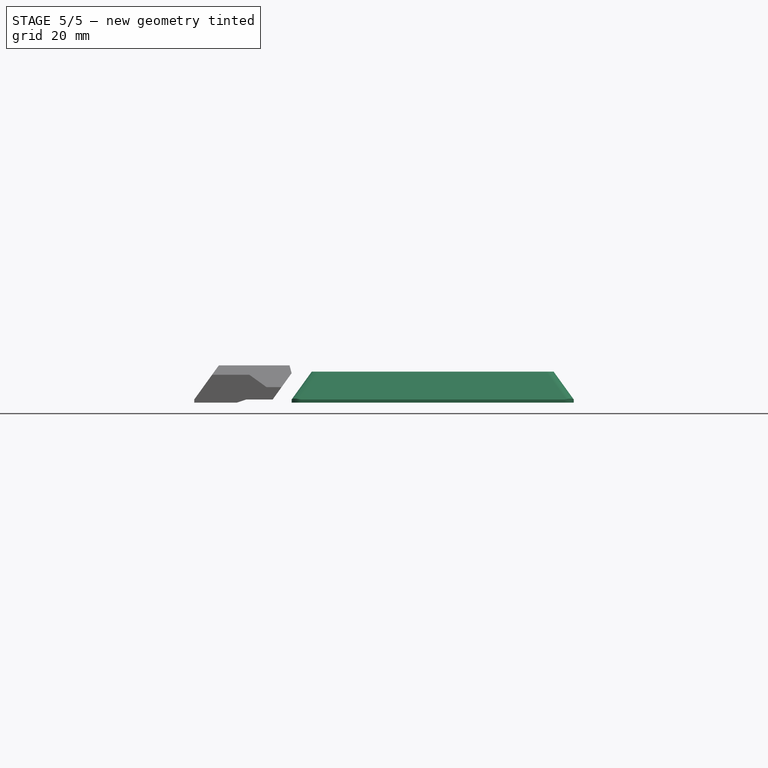
[diagram: stage 5 of 5 — front view after this stage's code; geometry added in this stage tinted green]
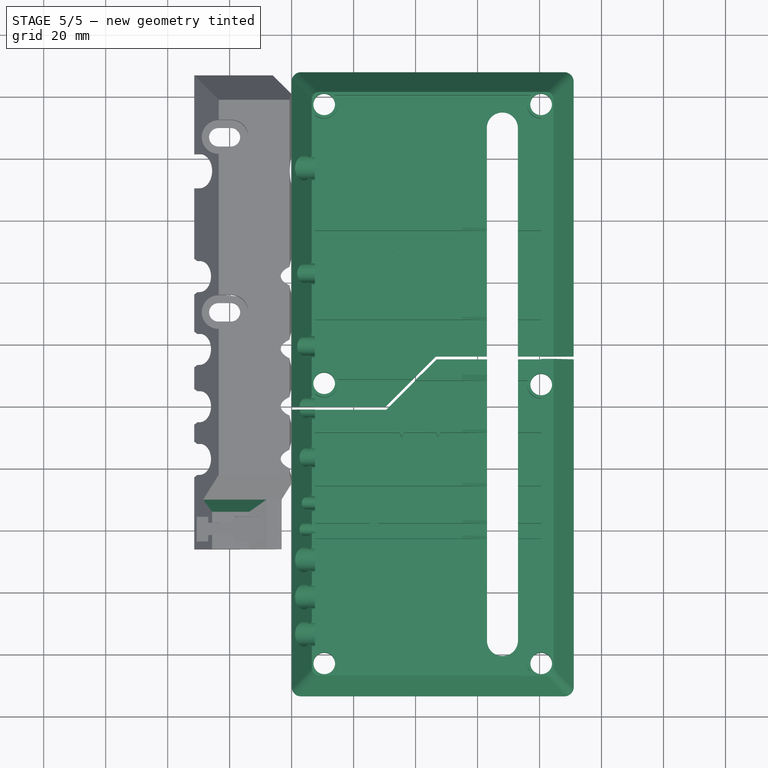
[diagram: stage 5 of 5 — top view after this stage's code; geometry added in this stage tinted green]
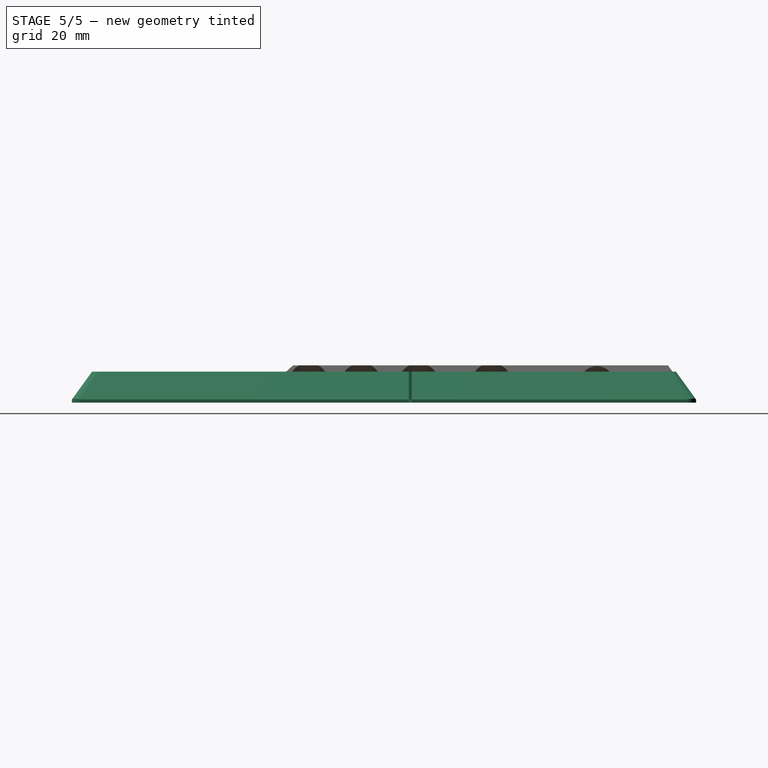
[diagram: stage 5 of 5 — right view after this stage's code; geometry added in this stage tinted green]
FEATURE [Sketcher::SketchObject] Sketch006
  MapMode = 5
  Placement = pos=(-31.4191,0,0) rot=(0.707107,0,-0.707107;3.14159rad)
  Support = -> [Pocket004]
  sketch-geometry (6):
    g0: LineSegment StartX=-1 StartY=-127 StartZ=0 EndX=-12.25 EndY=-118.75 EndZ=0
    g1: LineSegment StartX=-12.25 StartY=-118.75 StartZ=0 EndX=-12.25 EndY=-127 EndZ=0
    g2: LineSegment StartX=-12.25 StartY=-127 StartZ=0 EndX=-1 EndY=-127 EndZ=0
    g3: LineSegment StartX=-5 StartY=10 StartZ=0 EndX=-12.25 EndY=1.75 EndZ=0
    g4: LineSegment StartX=-12.25 StartY=1.75 StartZ=0 EndX=-12.25 EndY=10 EndZ=0
    g5: LineSegment StartX=-12.25 StartY=10 StartZ=0 EndX=-5 EndY=10 EndZ=0
  constraints (18):
    c: Coincident(g0,g1)
    c: Coincident(g1,g2)
    c: Coincident(g0,g2)
    c: Vertical(g1)
    c: Horizontal(g2)
    c: DistanceX(g0) = -1
    c: DistanceY(g0) = -127
    c: DistanceX(g2,g2) = 11.25
    c: DistanceY(g0,g0) = 8.25
    c: Coincident(g3,g4)
    c: Coincident(g4,g5)
    c: Coincident(g5,g3)
    c: Horizontal(g5)
    c: Vertical(g4)
    c: DistanceX(g3) = -5
    c: DistanceY(g3) = 10
    c: PointOnObject(g4,g1)
    c: Equal(g4,g1)
FEATURE [Sketcher::SketchObject] Sketch007
  MapMode = 5
  Placement = pos=(0,127,1.3e-11) rot=(-1,0,0;1.5708rad)
  sketch-geometry (3):
    g0: LineSegment StartX=-14.6 StartY=-1 StartZ=0 EndX=-17.6 EndY=0 EndZ=0
    g1: LineSegment StartX=-17.6 StartY=0 StartZ=0 EndX=-14.6 EndY=0 EndZ=0
    g2: LineSegment StartX=-14.6 StartY=0 StartZ=0 EndX=-14.6 EndY=-1 EndZ=0
  constraints (9):
    c: PointOnObject(g0,g-1)
    c: Coincident(g0,g1)
    c: Horizontal(g1)
    c: Coincident(g1,g2)
    c: Coincident(g2,g0)
    c: DistanceX(g0) = -14.6
    c: DistanceY(g0) = -1
    c: Vertical(g2)
    c: DistanceX(g1,g1) = 3
FEATURE [Part::FeaturePython] b_interconnect_housing_001_  label="interconnect_housing_001"  # a2plus imported part (geometry in sourceFile) (typed FeaturePython)
  Placement = pos=(0,-73,0) rot=(0,0,1;0rad)
  a2p_Version = V0.1
  fixedPosition = true
  sourceFile = .\..\interconnect_housing_top\interconnect_housing_top.FCStd
  subassemblyImport = false
  timeLastImport = 1.58387e+09
  updateColors = true
FEATURE [Part::FeaturePython] b_interconnect_housing_bottom_001_  label="interconnect_housing_bottom_001"  # a2plus imported part (geometry in sourceFile) (typed FeaturePython)
  Placement = pos=(0.0357304,-73.4134,0.00453949) rot=(0,0,1;0rad)
  a2p_Version = V0.1
  fixedPosition = false
  sourceFile = .\..\interconnect_housing_bottom\interconnect_housing_bottom.FCStd
  subassemblyImport = false
  timeLastImport = 1.58387e+09
  updateColors = true
FEATURE [PartDesign::Chamfer] Chamfer
  Base = -> Pocket007 [Edge150]
  BaseFeature = -> Pocket007
  Placement = pos=(0,0,0) rot=(1,0,0;1.5708rad)
  Size = 3.99
FEATURE [PartDesign::Body] Body
  Group = -> [Sketch,Pad,Sketch001,Sketch002,Sketch003,Sketch004,Sketch005,Sketch006,Pocket,Pocket001,Pocket002,Pocket003,Pocket004,Sketch007,Pocket005,Pocket006,Pad001,Sketch015,Sketch018,Pad002,Sketch019,Sketch020,SubtractivePipe,Pocket007,Chamfer]
  Origin = -> Origin
  Tip = -> Chamfer
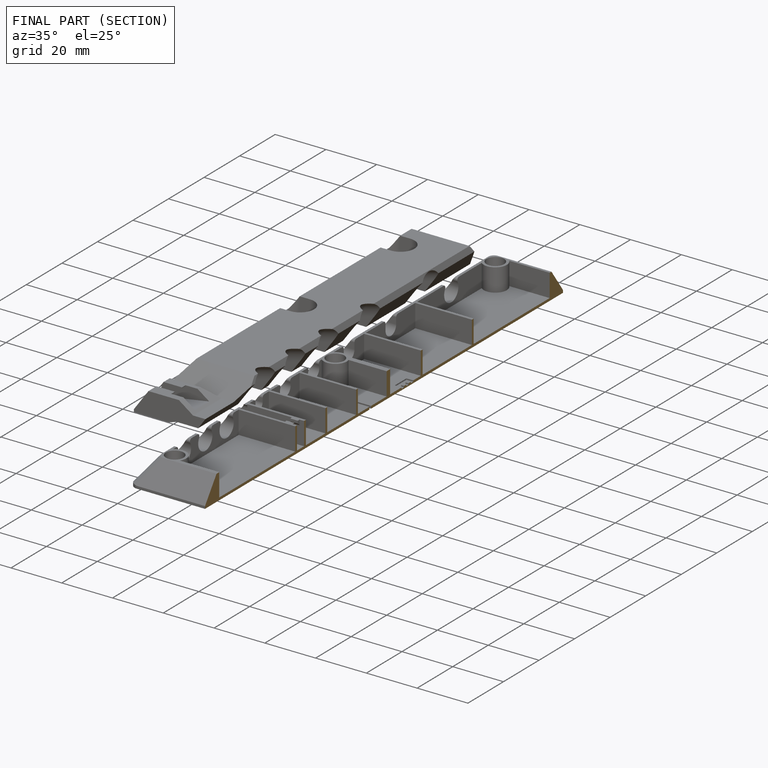
[diagram: finished part — half-section view (interior)]
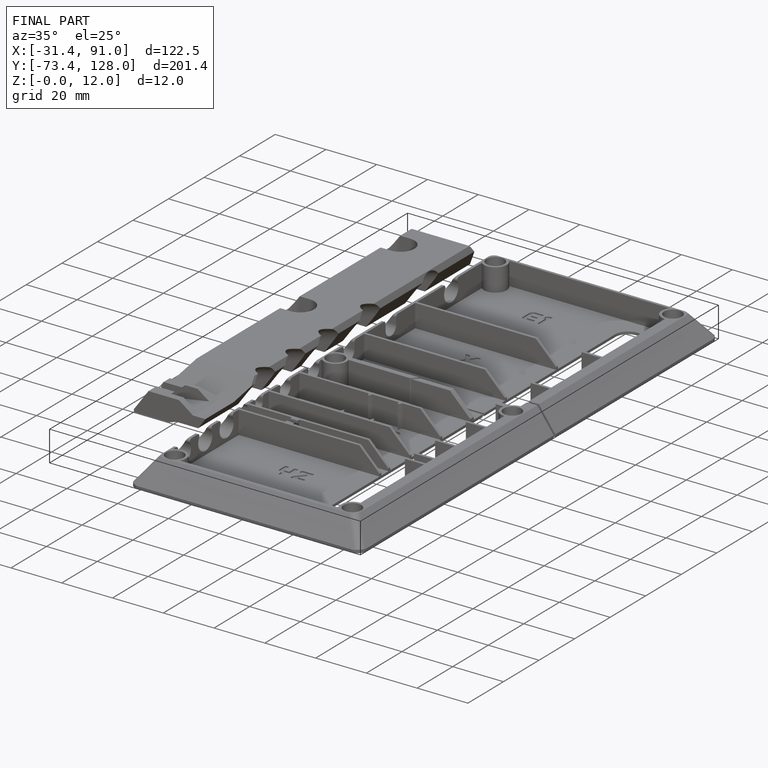
[diagram: finished part — iso view with bounding-box wireframe]
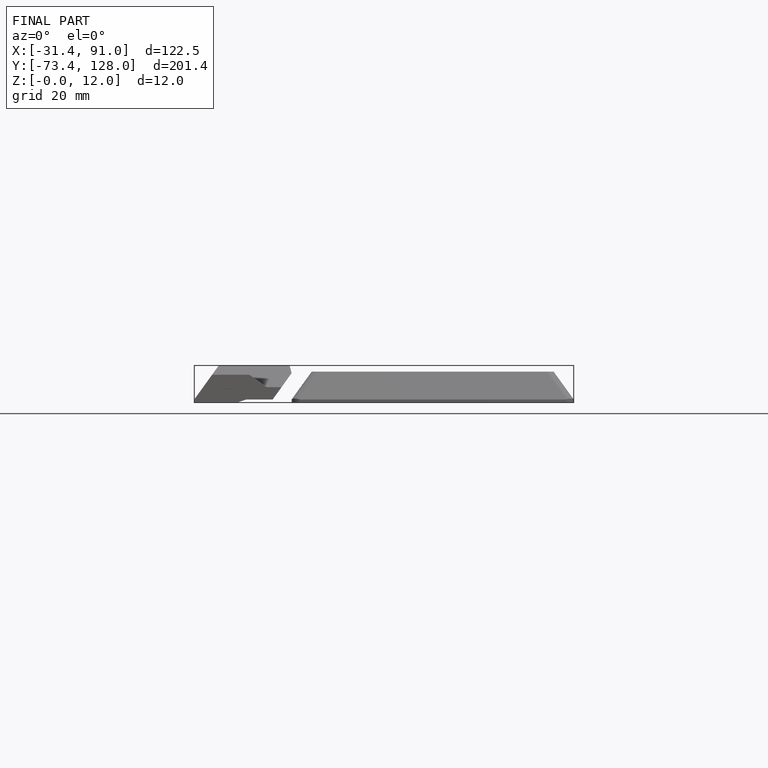
[diagram: finished part — front view with bounding-box wireframe]
